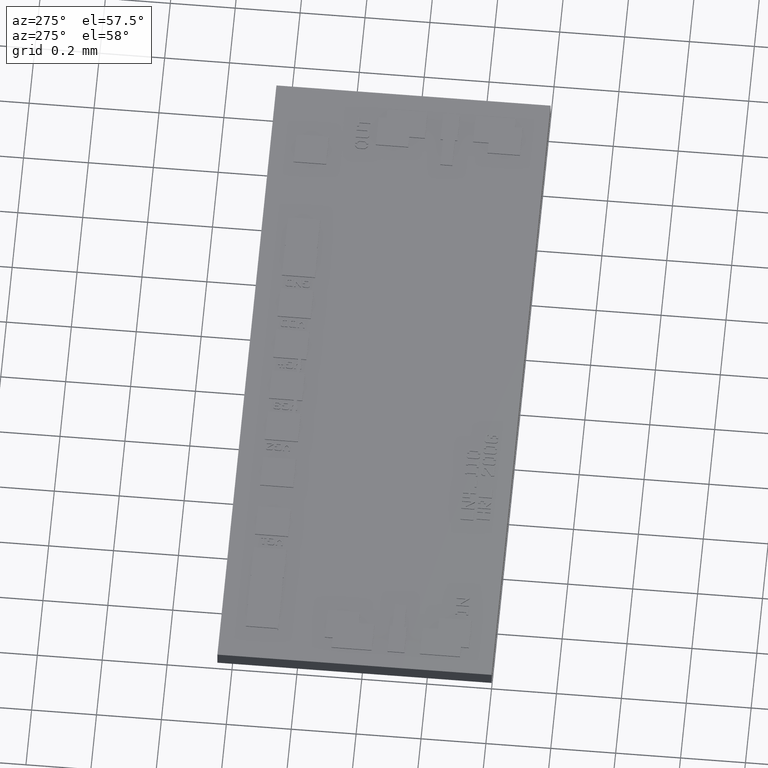
[diagram: clean part render]
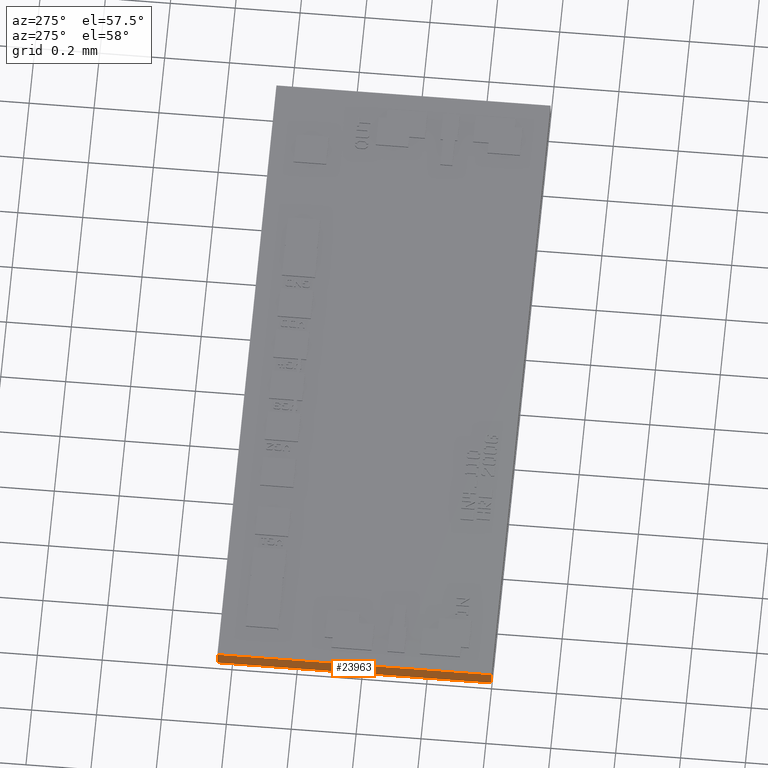
[diagram: same view with one face highlighted and labeled with its STEP entity id]
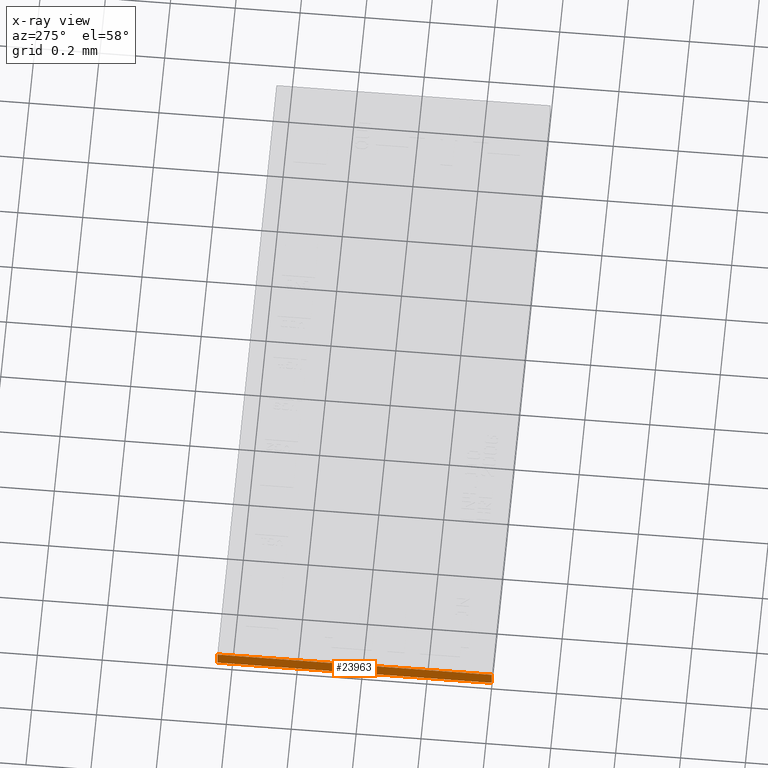
[diagram: x-ray of the same camera — body ghosted, the highlighted face saturated]
A machine part, auxiliary view. The second image highlights one B-rep face of the part: STEP entity #23963.
The next image is the same camera in x-ray: the body ghosted, the highlighted face saturated — about 0% of this face is hidden behind the body in this view.
In plain terms, the highlighted planar face has unit normal (-1, 0, 0).
Its self-contained STEP definition (entity closure, byte-faithful):
#21903=CARTESIAN_POINT('',(1.507752E-016,0.033267716535433,0.001811023622047));
#21904=VERTEX_POINT('',#21903);
#21913=CARTESIAN_POINT('',(0.0,0.0,0.001811023622047));
#21914=VERTEX_POINT('',#21913);
#21915=CARTESIAN_POINT('',(5.520610E-019,0.0,0.001811023622047));
#21916=DIRECTION('',(0.0,1.0,0.0));
#21917=VECTOR('',#21916,0.033267716535433);
#21918=LINE('',#21915,#21917);
#21919=EDGE_CURVE('',#21914,#21904,#21918,.T.);
#22770=CARTESIAN_POINT('',(1.507752E-016,0.033267716535433,0.0));
#22771=VERTEX_POINT('',#22770);
#22778=CARTESIAN_POINT('',(1.507752E-016,0.033267716535433,0.0));
#22779=DIRECTION('',(0.0,0.0,1.0));
#22780=VECTOR('',#22779,0.001811023622047);
#22781=LINE('',#22778,#22780);
#22782=EDGE_CURVE('',#22771,#21904,#22781,.T.);
#23929=CARTESIAN_POINT('',(0.0,0.0,0.0));
#23930=VERTEX_POINT('',#23929);
#23931=CARTESIAN_POINT('',(0.0,0.0,0.0));
#23932=DIRECTION('',(0.0,0.0,1.0));
#23933=VECTOR('',#23932,0.001811023622047);
#23934=LINE('',#23931,#23933);
#23935=EDGE_CURVE('',#23930,#21914,#23934,.T.);
#23947=CARTESIAN_POINT('',(0.0,0.0,0.0));
#23948=DIRECTION('',(-1.0,0.0,0.0));
#23949=DIRECTION('',(0.0,0.0,1.0));
#23950=AXIS2_PLACEMENT_3D('',#23947,#23948,#23949);
#23951=PLANE('',#23950);
#23952=ORIENTED_EDGE('',*,*,#21919,.T.);
#23953=ORIENTED_EDGE('',*,*,#22782,.F.);
#23954=CARTESIAN_POINT('',(1.507752E-016,0.033267716535433,0.0));
#23955=DIRECTION('',(0.0,-1.0,0.0));
#23956=VECTOR('',#23955,0.033267716535433);
#23957=LINE('',#23954,#23956);
#23958=EDGE_CURVE('',#22771,#23930,#23957,.T.);
#23959=ORIENTED_EDGE('',*,*,#23958,.T.);
#23960=ORIENTED_EDGE('',*,*,#23935,.T.);
#23961=EDGE_LOOP('',(#23952,#23953,#23959,#23960));
#23962=FACE_OUTER_BOUND('',#23961,.T.);
#23963=ADVANCED_FACE('',(#23962),#23951,.T.);